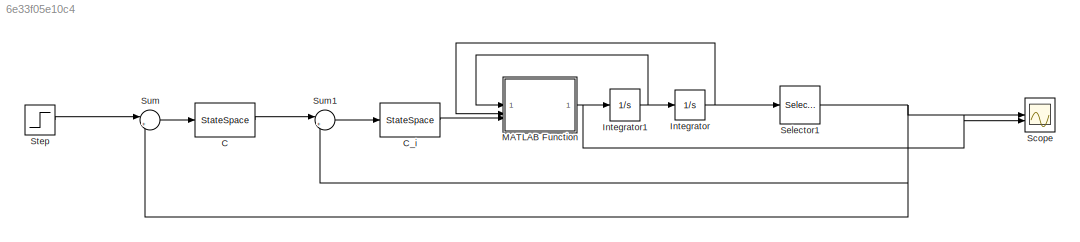
MODEL slx_6e33f05e10c4
KIND model
CONFIG AbsTol = auto
CONFIG EnableMultiTasking = off
CONFIG FixedStep = auto
CONFIG MaxStep = auto
CONFIG MinStep = auto
CONFIG RelTol = 1e+10
CONFIG SampleTimeConstraint = Unconstrained
CONFIG SolverName = ode1be
CONFIG StartTime = 0.0
CONFIG StopTime = 100
BLOCK [StateSpace]  C
  A = Controller2.A
  B = Controller2.B
  C = Controller2.C
  D = Controller2.D
  InitialCondition = 0
BLOCK [StateSpace] C_i
  A = Controller1.A
  B = Controller1.B
  C = Controller1.C
  D = Controller1.D
  InitialCondition = 0
BLOCK [Integrator] Integrator
BLOCK [Integrator] Integrator1
  IgnoreLimit = on
  InitialCondition = 1
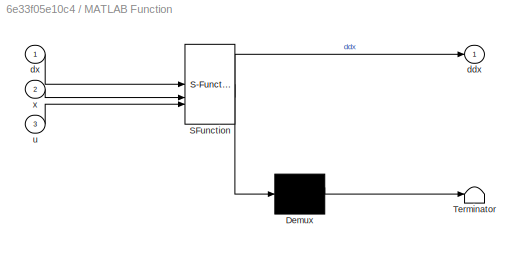
BLOCK [SubSystem] MATLAB Function
  ErrorFcn = Stateflow.Translate.translate
  LibrarySourceBlock = simulink/User-Defined\nFunctions/MATLAB Function
  PermitHierarchicalResolution = ExplicitOnly
  SFBlockType = MATLAB Function
  TreatAsAtomicUnit = on
BLOCK [Demux] MATLAB Function/ Demux 
  Outputs = 1
BLOCK [S-Function] MATLAB Function/ SFunction 
  EnableBusSupport = on
  FunctionName = sf_sfun
  PortCounts = [3 2]
  SFcnIsStateOwnerBlock = off
  SFunctionDeploymentMode = off
  Tag = Stateflow S-Function 2
BLOCK [Terminator] MATLAB Function/ Terminator 
BLOCK [Outport] MATLAB Function/ddx
BLOCK [Inport] MATLAB Function/dx
BLOCK [Inport] MATLAB Function/u
  Port = 3
BLOCK [Inport] MATLAB Function/x
  Port = 2
BLOCK [Scope] Scope
  Floating = off
  NumInputPorts = 3
  ScopeSpecificationString = Simulink.scopes.TimeScopeBlockCfg('CurrentConfiguration', extmgr.ConfigurationSet(extmgr.Configuration('Core','General UI',true),extmgr.Configuration('Core','Source UI',true),extmgr.Configuration('Sources','WiredSimulink',true,'SampleTime','1'),extmgr.Configuration('Visuals','Time Domain',true,'SerializedDisplays',{struct('MinYLimReal','-2232801.00921','MaxYLimReal','441414.49104','YLabelReal','',...<+2779ch>
BLOCK [Selector] Selector1
  IndexOptions = Index vector (dialog)
  Indices = [1]
  InputPortWidth = 2
  OutputSizes = 1
BLOCK [Step] Step
  OutDataTypeStr = single
  SampleTime = 1
  VectorParams1D = off
  ZeroCross = off
BLOCK [Sum] Sum
  Inputs = |+-
BLOCK [Sum] Sum1
  Inputs = |+-
LINE  C:1 -> Sum1:1
LINE C_i:1 -> MATLAB Function:3
NET Integrator1:1 -> Integrator:1, MATLAB Function:1
NET Integrator:1 -> MATLAB Function:2, Selector1:1
NET MATLAB Function:1 -> Integrator1:1, Scope:2
NET Selector1:1 -> Scope:1, Sum1:2, Sum:2
LINE Step:1 -> Sum:1
LINE Sum1:1 -> C_i:1
LINE Sum:1 ->  C:1
note: NET lines group one-source signal fan-out (src -> all destinations, sorted); 1:1 wires keep LINE
CHART MATLAB Function states=1 transitions=1
  STATE_LABEL 'eML_blk_kernel()'
  STATE_LABEL 'SCRIPT:\nfunction ddx = sistema( dx, x, u)\n    % Parametri\n    g = 9.81;\n    M = 63200;\n    J = 235000;\n    d = 6.5;\n    beta_theta1 = 300;\n    beta_theta2 = 450;\n    beta_v = 500;\n    S = 125;\n    rho = 1.5; \n\n    \n    T = u;\n\n    % Stati\n    h = x(1);\n    theta = x(2);\n    dh = dx(1);\n    dtheta = dx(2);\n\n    \n    D_dh = 0.5 * rho * dh^2 * S;\n    gamma_dh = beta_v * dh;\n\n    % Equazioni \n    \n   ...<+200ch>'
CHART  states=0 transitions=0
